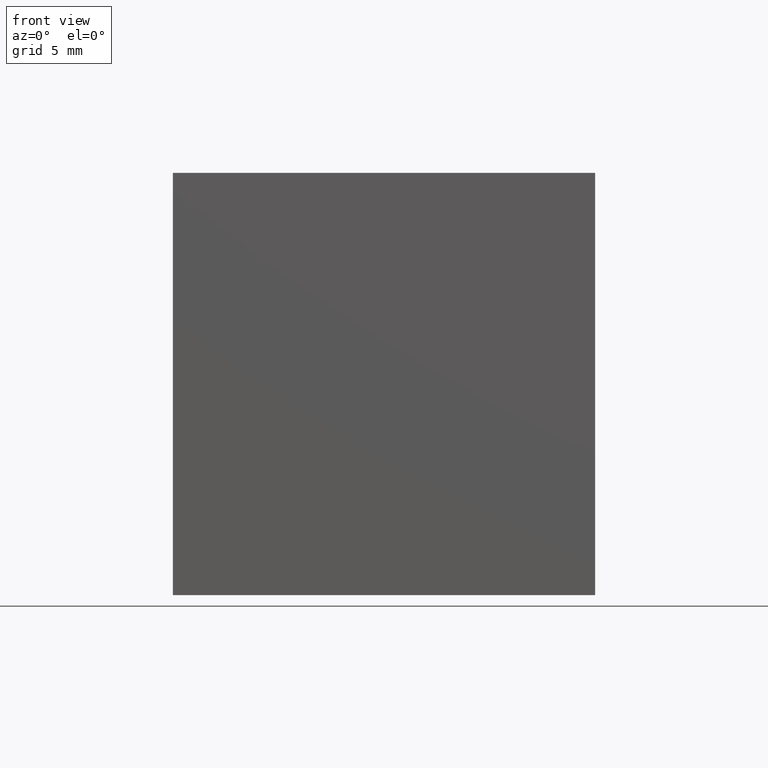
[diagram: clean part render]
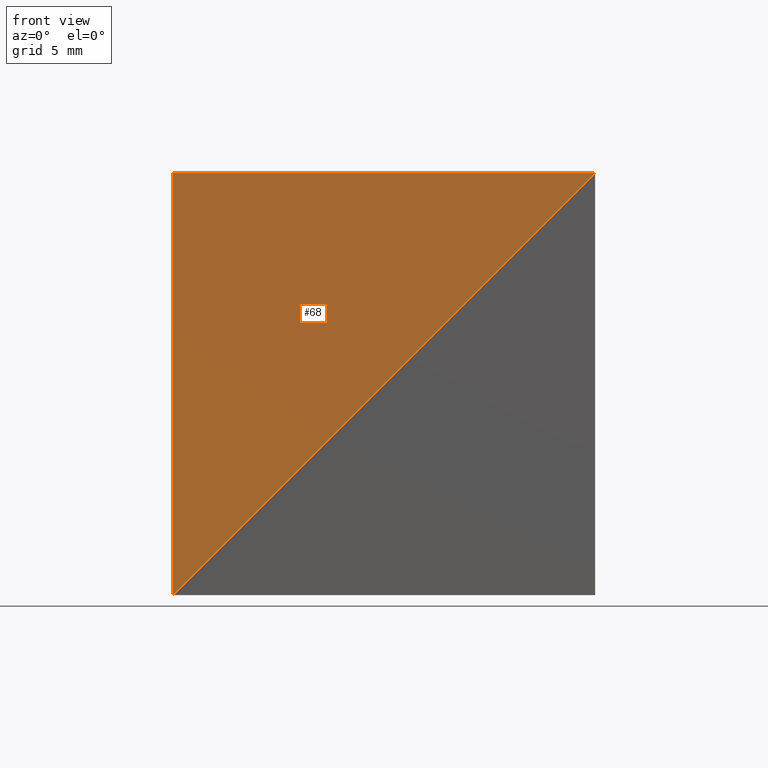
[diagram: same view with one face highlighted and labeled with its STEP entity id]
A machine part, front view. The second image highlights one B-rep face of the part: STEP entity #68.
In plain terms, the highlighted planar face has unit normal (0, 1, 0).
Its self-contained STEP definition (entity closure, byte-faithful):
#15 = DIRECTION ( 'NONE',  ( -1.000000000000000000, -0.0000000000000000000, -0.0000000000000000000 ) ) ;
#17 = EDGE_CURVE ( 'NONE', #267, #90, #138, .T. ) ;
#27 = CARTESIAN_POINT ( 'NONE',  ( -25.00000000000000000, -0.0000000000000000000, -25.00000000000000000 ) ) ;
#34 = EDGE_CURVE ( 'NONE', #90, #44, #237, .T. ) ;
#41 = EDGE_LOOP ( 'NONE', ( #282, #272, #177 ) ) ;
#44 = VERTEX_POINT ( 'NONE', #256 ) ;
#68 = ADVANCED_FACE ( 'NONE', ( #69 ), #214, .F. ) ;
#69 = FACE_OUTER_BOUND ( 'NONE', #41, .T. ) ;
#90 = VERTEX_POINT ( 'NONE', #148 ) ;
#92 = EDGE_CURVE ( 'NONE', #44, #267, #265, .T. ) ;
#97 = DIRECTION ( 'NONE',  ( -0.0000000000000000000, -0.0000000000000000000, -1.000000000000000000 ) ) ;
#111 = VECTOR ( 'NONE', #97, 1000.000000000000000 ) ;
#115 = CARTESIAN_POINT ( 'NONE',  ( -25.00000000000000000, -0.0000000000000000000, -25.00000000000000000 ) ) ;
#117 = VECTOR ( 'NONE', #288, 1000.000000000000100 ) ;
#138 = LINE ( 'NONE', #169, #117 ) ;
#148 = CARTESIAN_POINT ( 'NONE',  ( 0.0000000000000000000, 0.0000000000000000000, 0.0000000000000000000 ) ) ;
#169 = CARTESIAN_POINT ( 'NONE',  ( 0.0000000000000000000, 0.0000000000000000000, 0.0000000000000000000 ) ) ;
#173 = AXIS2_PLACEMENT_3D ( 'NONE', #253, #241, #190 ) ;
#177 = ORIENTED_EDGE ( 'NONE', *, *, #92, .T. ) ;
#179 = CARTESIAN_POINT ( 'NONE',  ( -25.00000000000000000, 0.0000000000000000000, 0.0000000000000000000 ) ) ;
#190 = DIRECTION ( 'NONE',  ( 0.0000000000000000000, -0.0000000000000000000, 1.000000000000000000 ) ) ;
#196 = VECTOR ( 'NONE', #15, 1000.000000000000000 ) ;
#214 = PLANE ( 'NONE',  #173 ) ;
#237 = LINE ( 'NONE', #179, #196 ) ;
#241 = DIRECTION ( 'NONE',  ( 0.0000000000000000000, 1.000000000000000000, 0.0000000000000000000 ) ) ;
#253 = CARTESIAN_POINT ( 'NONE',  ( 0.0000000000000000000, 0.0000000000000000000, 0.0000000000000000000 ) ) ;
#256 = CARTESIAN_POINT ( 'NONE',  ( -25.00000000000000000, 0.0000000000000000000, 0.0000000000000000000 ) ) ;
#265 = LINE ( 'NONE', #115, #111 ) ;
#267 = VERTEX_POINT ( 'NONE', #27 ) ;
#272 = ORIENTED_EDGE ( 'NONE', *, *, #34, .T. ) ;
#282 = ORIENTED_EDGE ( 'NONE', *, *, #17, .T. ) ;
#288 = DIRECTION ( 'NONE',  ( 0.7071067811865474600, 0.0000000000000000000, 0.7071067811865474600 ) ) ;